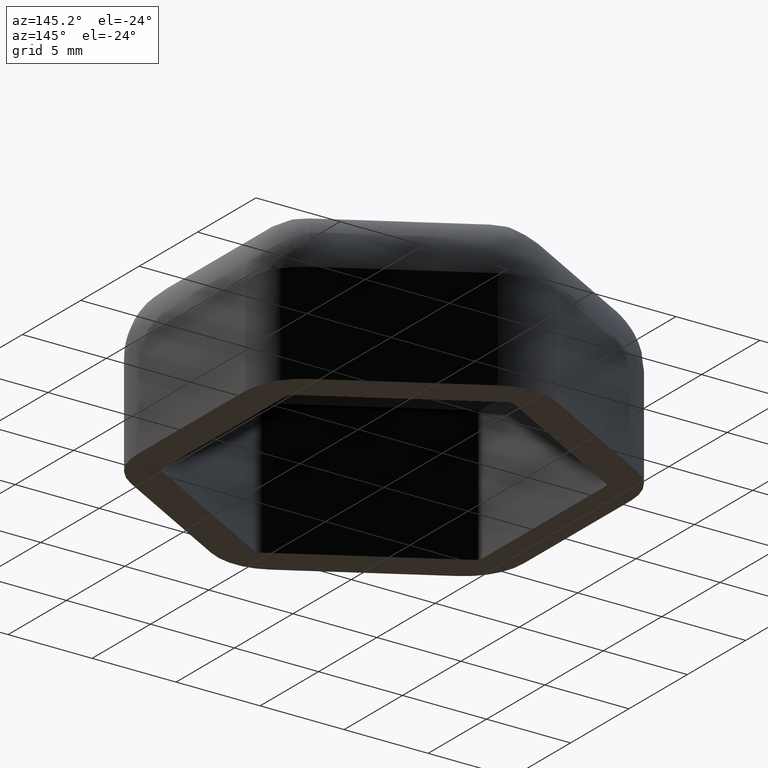
[diagram: clean part render]
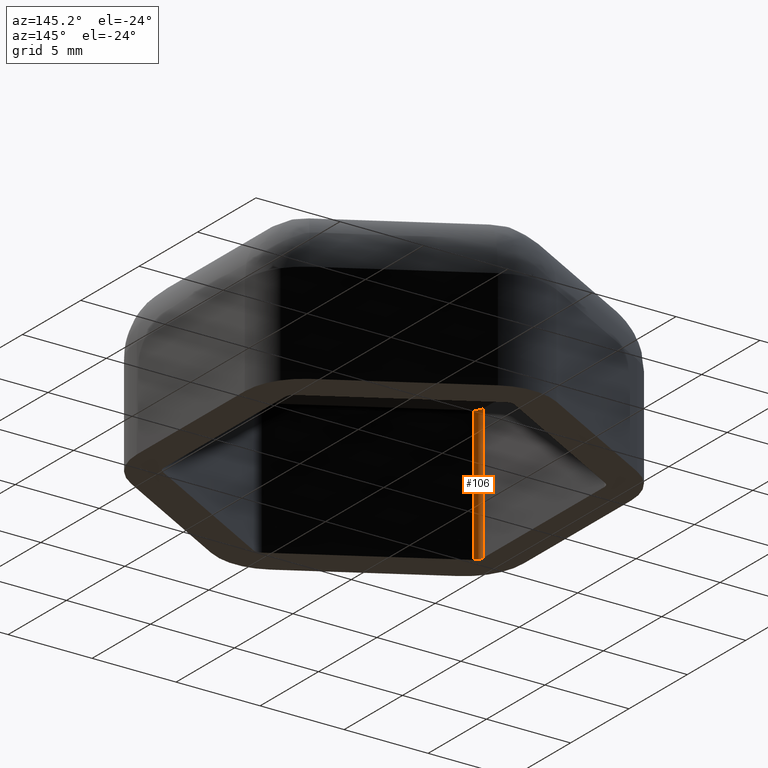
[diagram: same view with one face highlighted and labeled with its STEP entity id]
A machine part, auxiliary view. The second image highlights one B-rep face of the part: STEP entity #106.
In plain terms, the highlighted cylindrical surface (edge-blend (fillet) strip) has radius 0.5 mm, axis along (0, 0, -1).
Its self-contained STEP definition (entity closure, byte-faithful):
#106 = ADVANCED_FACE( '', ( #178 ), #179, .F. );
#178 = FACE_OUTER_BOUND( '', #941, .T. );
#179 = CYLINDRICAL_SURFACE( '', #942, 0.500000000000002 );
#941 = EDGE_LOOP( '', ( #1180, #1181, #1182, #1183 ) );
#942 = AXIS2_PLACEMENT_3D( '', #1184, #1185, #1186 );
#1180 = ORIENTED_EDGE( '', *, *, #1317, .T. );
#1181 = ORIENTED_EDGE( '', *, *, #1276, .F. );
#1182 = ORIENTED_EDGE( '', *, *, #1318, .F. );
#1183 = ORIENTED_EDGE( '', *, *, #1251, .F. );
#1184 = CARTESIAN_POINT( '', ( -8.99999999999999, -5.19615242270664, -30.0000000000000 ) );
#1185 = DIRECTION( '', ( 1.22460635382238E-016, 1.23259516440782E-032, -1.00000000000000 ) );
#1186 = DIRECTION( '', ( 0.500000000000000, -0.866025403784439, 6.12303176911189E-017 ) );
#1251 = EDGE_CURVE( '', #1355, #1357, #1358, .F. );
#1276 = EDGE_CURVE( '', #1401, #1403, #1404, .T. );
#1317 = EDGE_CURVE( '', #1355, #1403, #1461, .T. );
#1318 = EDGE_CURVE( '', #1357, #1401, #1462, .T. );
#1355 = VERTEX_POINT( '', #1506 );
#1357 = VERTEX_POINT( '', #1509 );
#1358 = CIRCLE( '', #1510, 0.500000000000002 );
#1401 = VERTEX_POINT( '', #1566 );
#1403 = VERTEX_POINT( '', #1569 );
#1404 = CIRCLE( '', #1570, 0.500000000000002 );
#1461 = LINE( '', #1650, #1651 );
#1462 = LINE( '', #1652, #1653 );
#1506 = CARTESIAN_POINT( '', ( -9.50000000000000, -5.19615242270663, -1.16337603613126E-015 ) );
#1509 = CARTESIAN_POINT( '', ( -9.25000000000000, -5.62916512459886, -1.13276087728570E-015 ) );
#1510 = AXIS2_PLACEMENT_3D( '', #1697, #1698, #1699 );
#1566 = CARTESIAN_POINT( '', ( -9.25000000000000, -5.62916512459886, 8.00000000000000 ) );
#1569 = CARTESIAN_POINT( '', ( -9.50000000000000, -5.19615242270663, 8.00000000000000 ) );
#1570 = AXIS2_PLACEMENT_3D( '', #1744, #1745, #1746 );
#1650 = CARTESIAN_POINT( '', ( -9.49999999999999, -5.19615242270663, -30.0000000000000 ) );
#1651 = VECTOR( '', #1821, 1000.00000000000 );
#1652 = CARTESIAN_POINT( '', ( -9.24999999999999, -5.62916512459886, -30.0000000000000 ) );
#1653 = VECTOR( '', #1822, 1000.00000000000 );
#1697 = CARTESIAN_POINT( '', ( -9.00000000000000, -5.19615242270664, -1.10214571844014E-015 ) );
#1698 = DIRECTION( '', ( 1.22460635382238E-016, 0.000000000000000, -1.00000000000000 ) );
#1699 = DIRECTION( '', ( -1.00000000000000, 0.000000000000000, -1.22460635382238E-016 ) );
#1744 = CARTESIAN_POINT( '', ( -9.00000000000000, -5.19615242270664, 8.00000000000000 ) );
#1745 = DIRECTION( '', ( 1.22460635382238E-016, 1.23259516440782E-032, -1.00000000000000 ) );
#1746 = DIRECTION( '', ( -0.500000000000001, -0.866025403784438, -6.12303176911190E-017 ) );
#1821 = DIRECTION( '', ( -1.22460635382238E-016, 0.000000000000000, 1.00000000000000 ) );
#1822 = DIRECTION( '', ( -1.22460635382238E-016, 0.000000000000000, 1.00000000000000 ) );